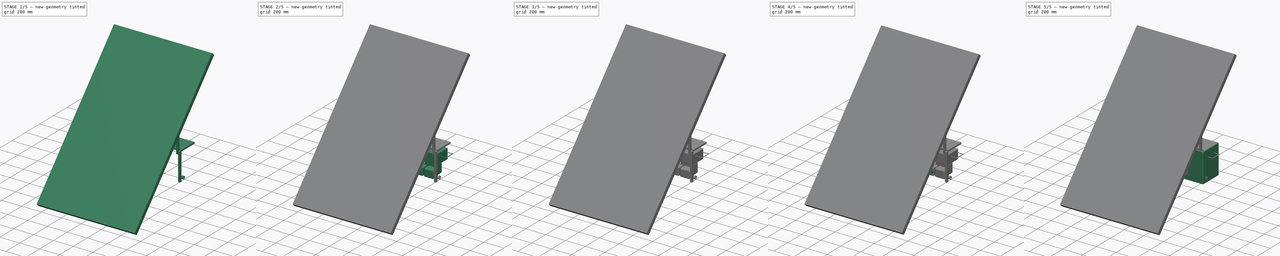
[diagram: build sequence overview — one tinted view per stage of 5, left to right]
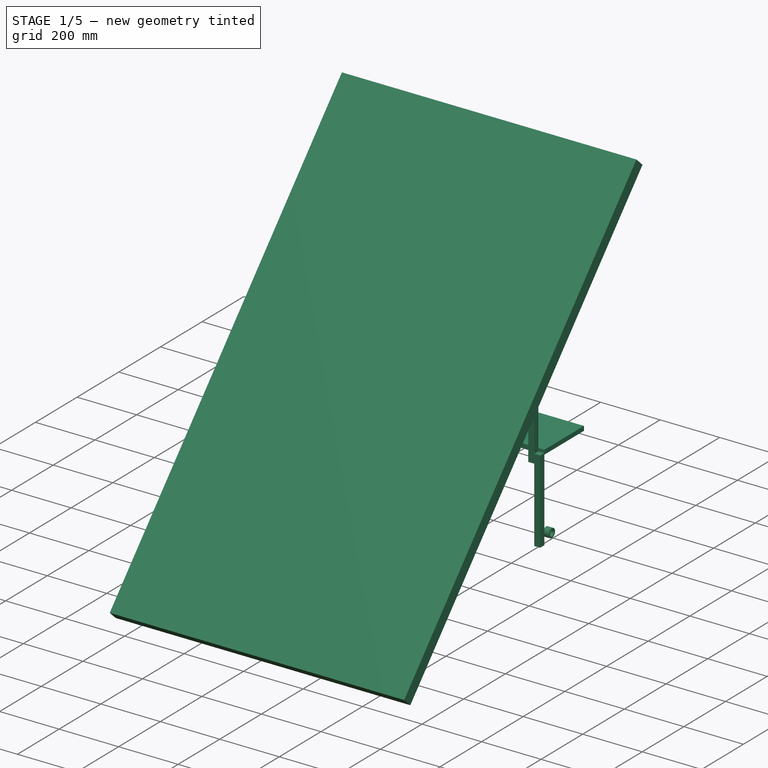
[diagram: stage 1 of 5 — iso view after this stage's code; geometry added in this stage tinted green]
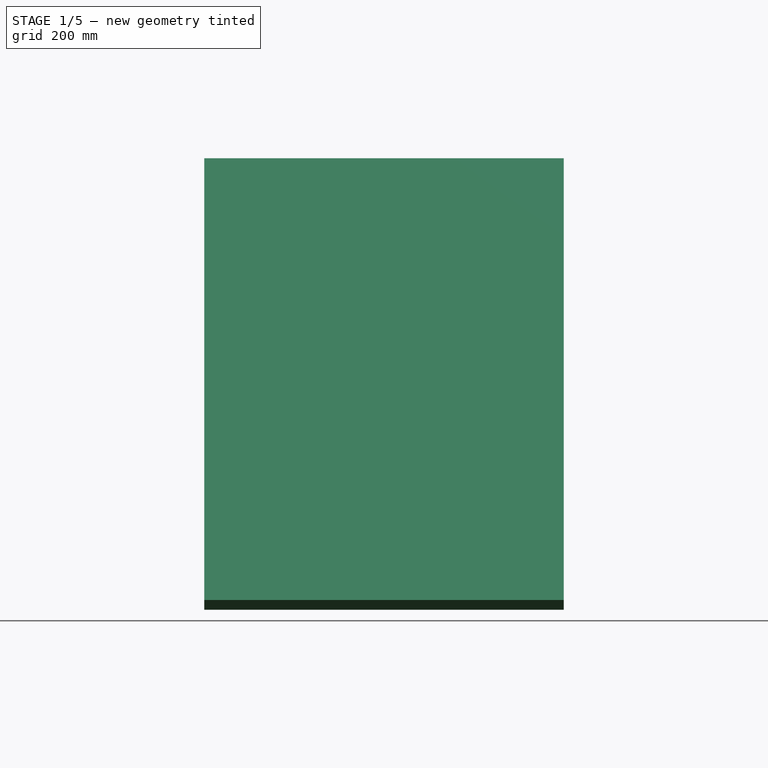
[diagram: stage 1 of 5 — front view after this stage's code; geometry added in this stage tinted green]
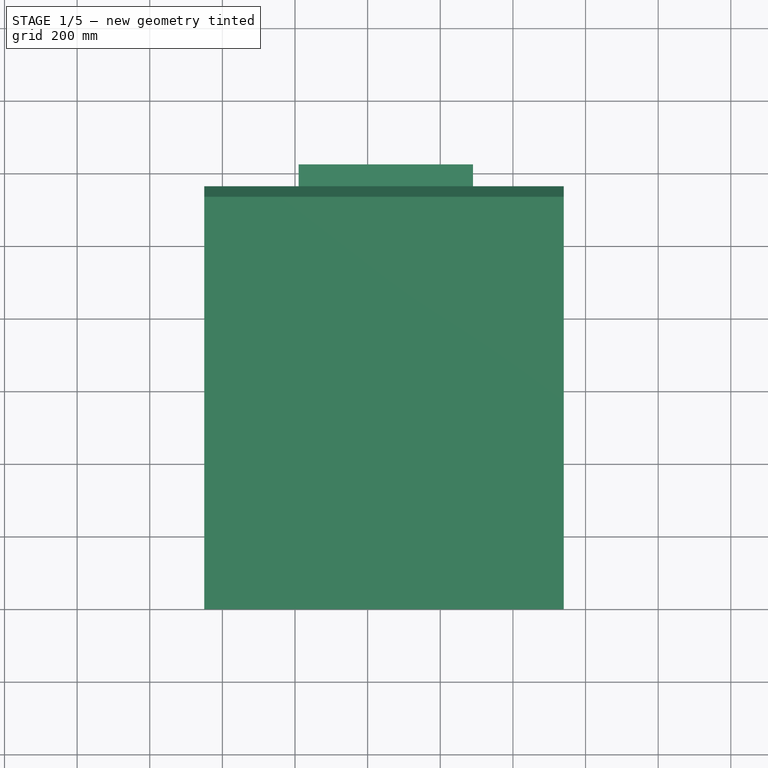
[diagram: stage 1 of 5 — top view after this stage's code; geometry added in this stage tinted green]
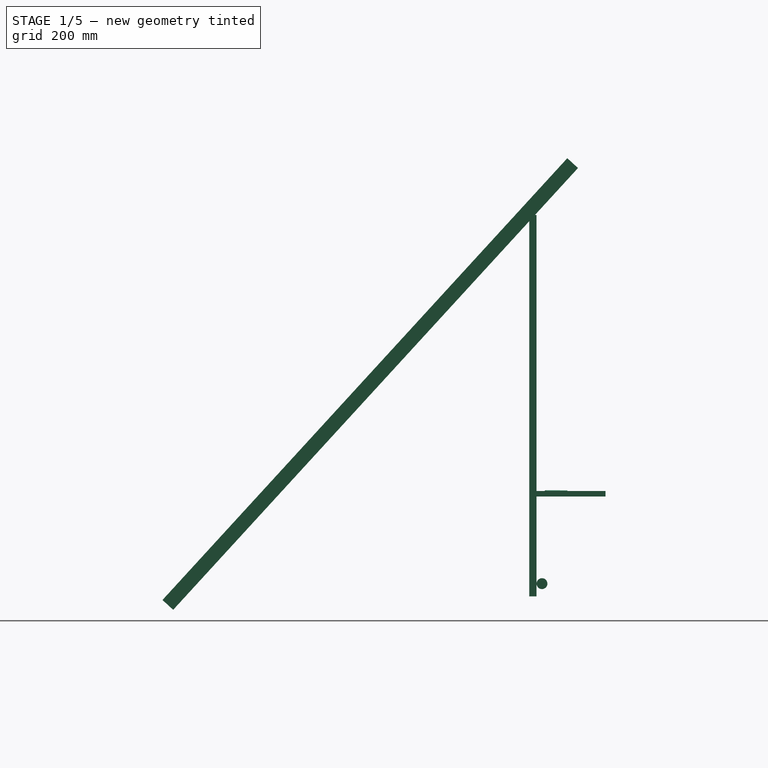
[diagram: stage 1 of 5 — right view after this stage's code; geometry added in this stage tinted green]
FCSTD DOCUMENT  (FreeCAD 0.16R6706 (Git))
Label: HOOU_FreeCAD_Solar_Box_v_03
License: All rights reserved
LicenseURL: http://en.wikipedia.org/wiki/All_rights_reserved
objects: Part::Box×35, Part::Cylinder×27, Part::Cut×14, Part::Fuse×12, Part::Fillet×8, Sketcher::SketchObject×4, PartDesign::Body×4, PartDesign::Pad×2, App::DocumentObjectGroup×1, Part::MultiFuse×1
note: 109 computed .brp shape members not serialized (recipe doc carries the construction recipe); baked Part::Feature solids carry a one-line shape summary decoded from their .brp

FEATURE [Part::Box] Box026  label="Solar Box Top part 1"
  Height = 15
  Length = 480
  Placement = pos=(10,30,285) rot=(0,0,1;0rad)
  Width = 190
FEATURE [Part::Cylinder] Cylinder025  label="Cylinder031"
  Angle = 360
  Height = 100
  Placement = pos=(-50,0,0) rot=(1,0,0;1.5708rad)
  Radius = 3
FEATURE [Part::Cylinder] Cylinder026  label="Cylinder032"
  Angle = 360
  Height = 60
  Placement = pos=(-50,-3,0) rot=(0,1,0;1.5708rad)
  Radius = 3
FEATURE [Part::Cylinder] Cylinder027  label="Cylinder033"
  Angle = 360
  Height = 60
  Placement = pos=(-50,-97,0) rot=(0,1,0;1.5708rad)
  Radius = 3
FEATURE [Part::Fuse] Fusion010
  Base = -> Cylinder025
  Tool = -> Cylinder026
FEATURE [Part::Fuse] Fusion011  label="Handle Top"
  Base = -> Cylinder027
  Placement = pos=(195,105,299) rot=(0,0,1;1.5708rad)
  Tool = -> Fusion010
FEATURE [Part::Box] Box027  label="Support left part 1"
  Height = 280
  Length = 20
  Placement = pos=(10,10,10) rot=(0,0,1;0rad)
  Width = 20
FEATURE [Part::Box] Box028  label="Support right part 1"
  Height = 280
  Length = 20
  Placement = pos=(470,10,10) rot=(0,0,1;0rad)
  Width = 20
FEATURE [Part::Box] Box029  label="Support left part 2"
  Height = 280
  Length = 20
  Placement = pos=(30,10,260) rot=(0,0,1;0rad)
  Width = 20
FEATURE [Part::Box] Box030  label="Support right part 2"
  Height = 280
  Length = 20
  Placement = pos=(450,10,260) rot=(0,0,1;0rad)
  Width = 20
FEATURE [Part::Box] Box031  label="Support left part 3"
  Height = 280
  Length = 20
  Placement = pos=(50,10,510) rot=(0,0,1;0rad)
  Width = 20
FEATURE [Part::Box] Box032  label="Support right part 3"
  Height = 280
  Length = 20
  Placement = pos=(430,10,510) rot=(0,0,1;0rad)
  Width = 20
FEATURE [Part::Box] Box033  label="Support left part 4"
  Height = 280
  Length = 20
  Placement = pos=(70,10,760) rot=(0,0,1;0rad)
  Width = 20
FEATURE [Part::Box] Box034  label="Support right part 4"
  Height = 280
  Length = 20
  Placement = pos=(410,10,760) rot=(0,0,1;0rad)
  Width = 20
FEATURE [Part::Box] Box035  label="Support top"
  Height = 480
  Length = 20
  Placement = pos=(10,10,1060) rot=(0,1,0;1.5708rad)
  Width = 20
FEATURE [Part::MultiFuse] Fusion013  label="Solar panel supporter"
  Shapes = -> [Box035,Box033,Box034,Box031,Box032,Box029,Box030,Box027,Box028]
FEATURE [Part::Box] Box036  label="Solar Panel"
  Height = 1650
  Length = 990
  Placement = pos=(-250,-1000,0) rot=(-1,0,0;0.741765rad)
  Width = 40
FEATURE [Part::Cylinder] Cylinder028  label="Micro Grid plug part 1"
  Angle = 360
  Height = 20
  Placement = pos=(485,45,45) rot=(0,1,0;1.5708rad)
  Radius = 15
FEATURE [Part::Cylinder] Cylinder029  label="Micro Grid plug part 2"
  Angle = 360
  Height = 16
  Placement = pos=(492,45,45) rot=(0,1,0;1.5708rad)
  Radius = 10
FEATURE [Part::Cut] Cut015  label="Micro Grid Plug"
  Base = -> Cylinder028
  Tool = -> Cylinder029
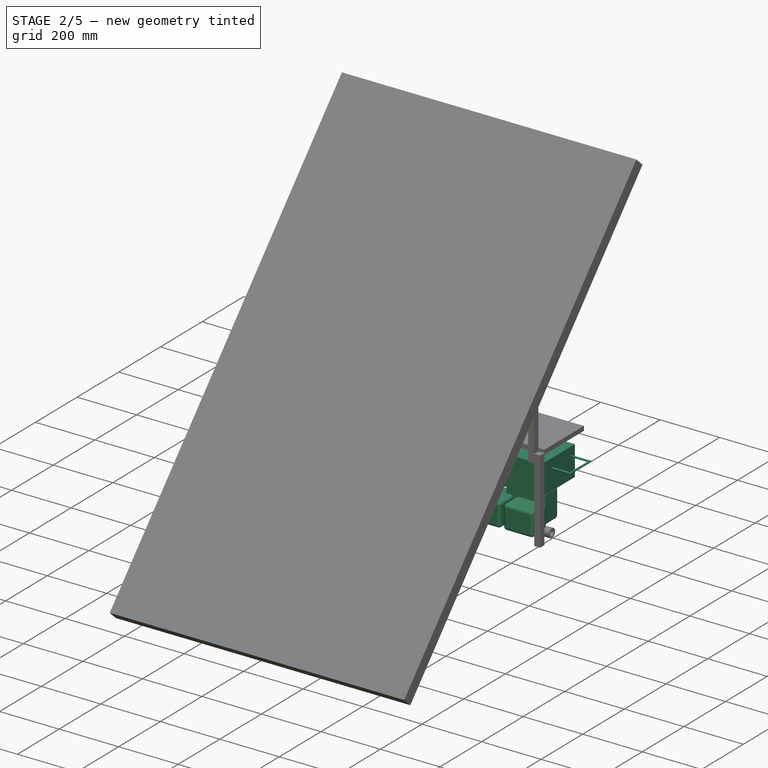
[diagram: stage 2 of 5 — iso view after this stage's code; geometry added in this stage tinted green]
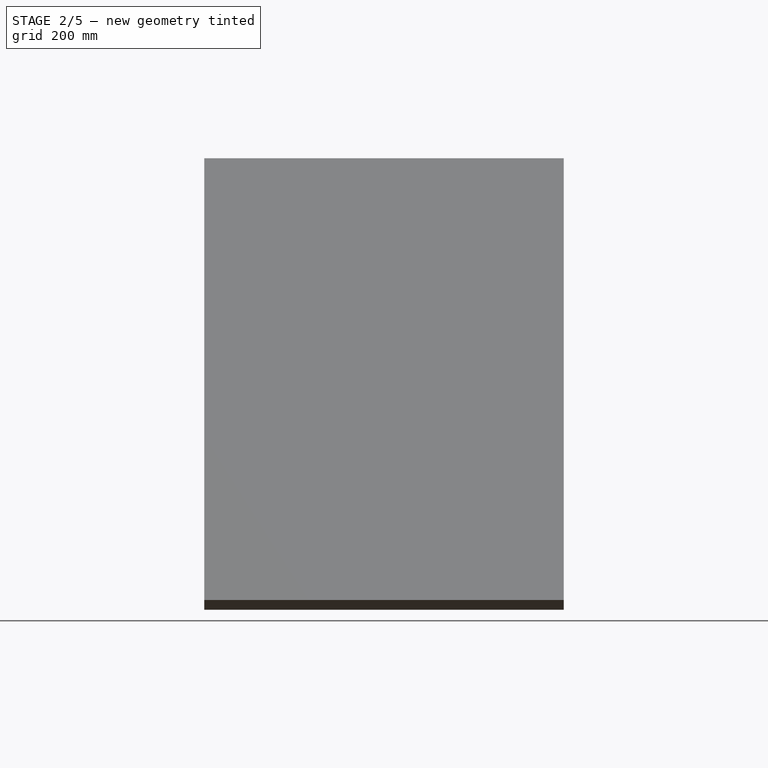
[diagram: stage 2 of 5 — front view after this stage's code; geometry added in this stage tinted green]
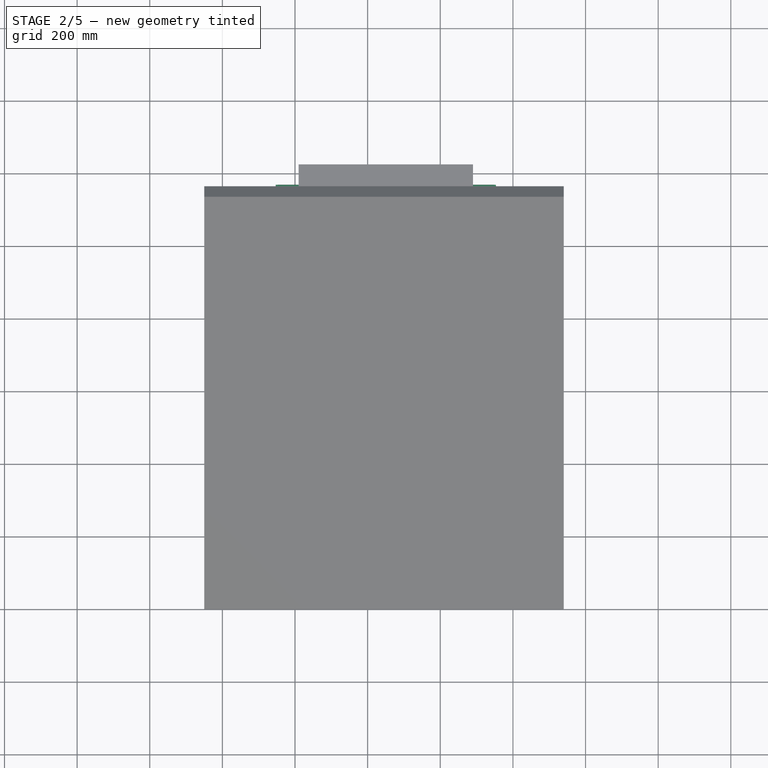
[diagram: stage 2 of 5 — top view after this stage's code; geometry added in this stage tinted green]
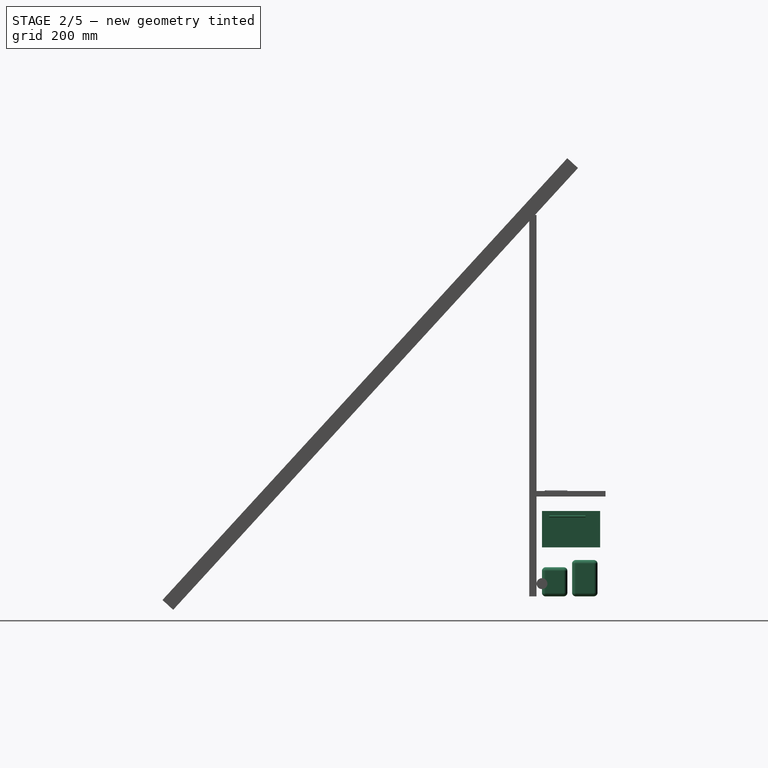
[diagram: stage 2 of 5 — right view after this stage's code; geometry added in this stage tinted green]
FEATURE [Part::Box] Box003  label="MPPT"
  Height = 100
  Length = 130
  Placement = pos=(290,128,10) rot=(0,0,1;0rad)
  Width = 70
FEATURE [Part::Box] Box007  label="Switch Box"
  Height = 80
  Length = 100
  Placement = pos=(340,45,10) rot=(0,0,1;0rad)
  Width = 70
FEATURE [Part::Box] Box008  label="Invertor"
  Height = 100
  Length = 260
  Placement = pos=(210,45,145) rot=(0,0,1;0rad)
  Width = 160
FEATURE [Part::Box] Box009  label="Fuse box"
  Height = 50
  Length = 50
  Placement = pos=(210,135,10) rot=(0,0,1;0rad)
  Width = 60
FEATURE [Part::Box] Box014  label="BMS"
  Height = 80
  Length = 120
  Placement = pos=(210,45,10) rot=(0,0,1;0rad)
  Width = 70
FEATURE [Part::Fillet] Fillet007  label="MPPT               "
  Base = -> Box003
  Edges = 12 edges r=10: [Edge1,Edge2,Edge3,Edge4,Edge5,Edge6,Edge7,Edge8,Edge9,Edge10,Edge11,Edge12]
FEATURE [Part::Fillet] Fillet008  label="switching Box"
  Base = -> Box007
  Edges = 12 edges r=10: [Edge1,Edge2,Edge3,Edge4,Edge5,Edge6,Edge7,Edge8,Edge9,Edge10,Edge11,Edge12]
FEATURE [Part::Fillet] Fillet009  label="Fuse Box"
  Base = -> Box009
  Edges = 12 edges r=10: [Edge1,Edge2,Edge3,Edge4,Edge5,Edge6,Edge7,Edge8,Edge9,Edge10,Edge11,Edge12]
FEATURE [Part::Fillet] Fillet010  label="BMS  "
  Base = -> Box014
  Edges = 12 edges r=10: [Edge1,Edge2,Edge3,Edge4,Edge5,Edge6,Edge7,Edge8,Edge9,Edge10,Edge11,Edge12]
FEATURE [Part::Cylinder] Cylinder019  label="Cylinder"
  Angle = 360
  Height = 100
  Placement = pos=(-50,0,0) rot=(1,0,0;1.5708rad)
  Radius = 3
FEATURE [Part::Cylinder] Cylinder020  label="Cylinder001"
  Angle = 360
  Height = 60
  Placement = pos=(-50,-3,0) rot=(0,1,0;1.5708rad)
  Radius = 3
FEATURE [Part::Cylinder] Cylinder021  label="Cylinder002"
  Angle = 360
  Height = 60
  Placement = pos=(-50,-97,0) rot=(0,1,0;1.5708rad)
  Radius = 3
FEATURE [Part::Fuse] Fusion006
  Base = -> Cylinder019
  Tool = -> Cylinder020
FEATURE [Part::Fuse] Fusion007  label="Handle Left"
  Base = -> Cylinder021
  Placement = pos=(0,165,230) rot=(0,0,1;0rad)
  Tool = -> Fusion006
FEATURE [Part::Cylinder] Cylinder022  label="Cylinder028"
  Angle = 360
  Height = 100
  Placement = pos=(-50,0,0) rot=(1,0,0;1.5708rad)
  Radius = 3
FEATURE [Part::Cylinder] Cylinder023  label="Cylinder029"
  Angle = 360
  Height = 60
  Placement = pos=(-50,-3,0) rot=(0,1,0;1.5708rad)
  Radius = 3
FEATURE [Part::Cylinder] Cylinder024  label="Cylinder030"
  Angle = 360
  Height = 60
  Placement = pos=(-50,-97,0) rot=(0,1,0;1.5708rad)
  Radius = 3
FEATURE [Part::Fuse] Fusion008
  Base = -> Cylinder022
  Tool = -> Cylinder023
FEATURE [Part::Fuse] Fusion009  label="Handle Right"
  Base = -> Cylinder024
  Placement = pos=(500,165,230) rot=(0,1,0;3.14159rad)
  Tool = -> Fusion008
FEATURE [Part::Fuse] Fusion012  label="Solar Box Top cover"
  Base = -> Box026
  Tool = -> Fusion011
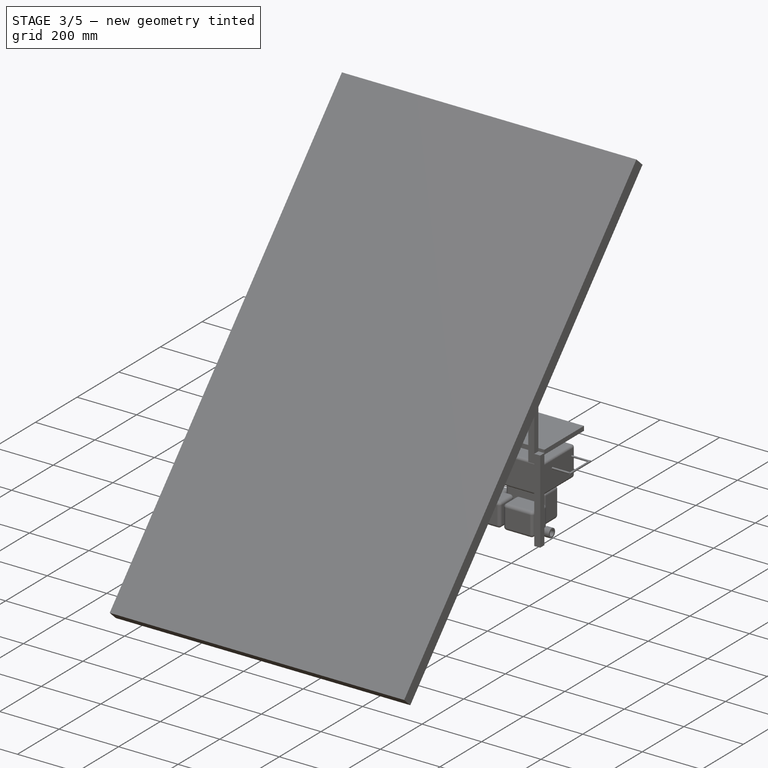
[diagram: stage 3 of 5 — iso view after this stage's code; geometry added in this stage tinted green]
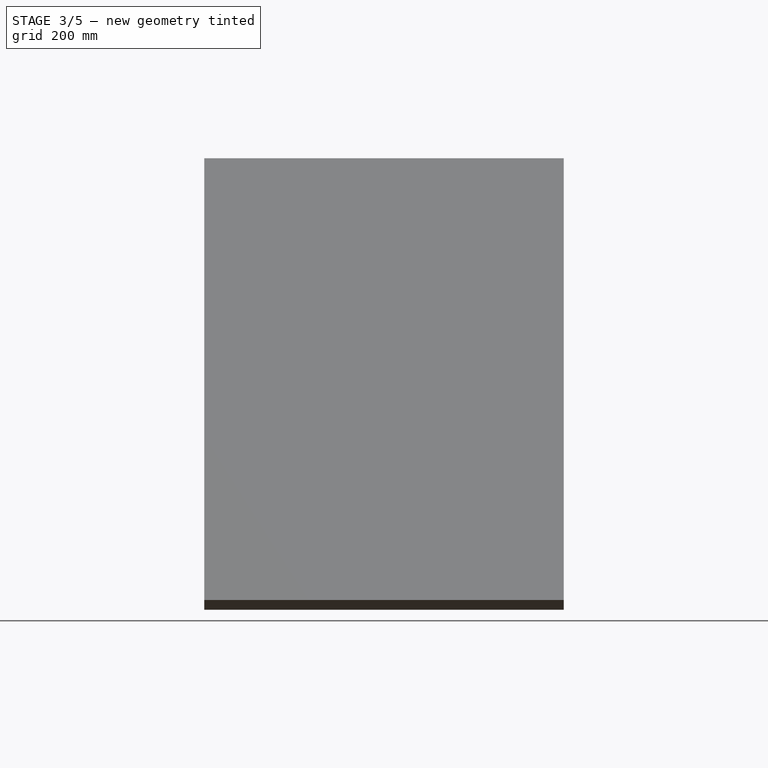
[diagram: stage 3 of 5 — front view after this stage's code; geometry added in this stage tinted green]
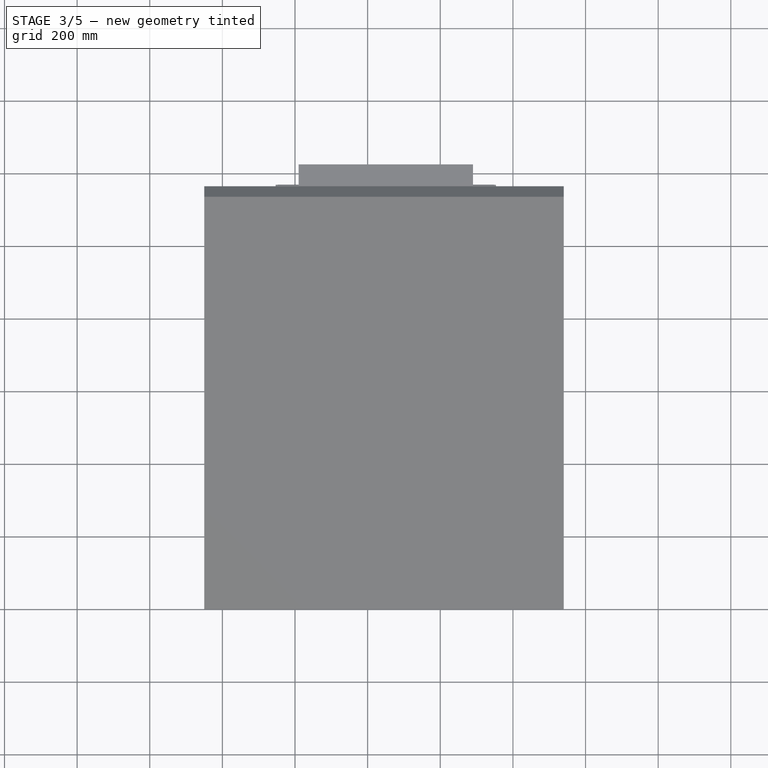
[diagram: stage 3 of 5 — top view after this stage's code; geometry added in this stage tinted green]
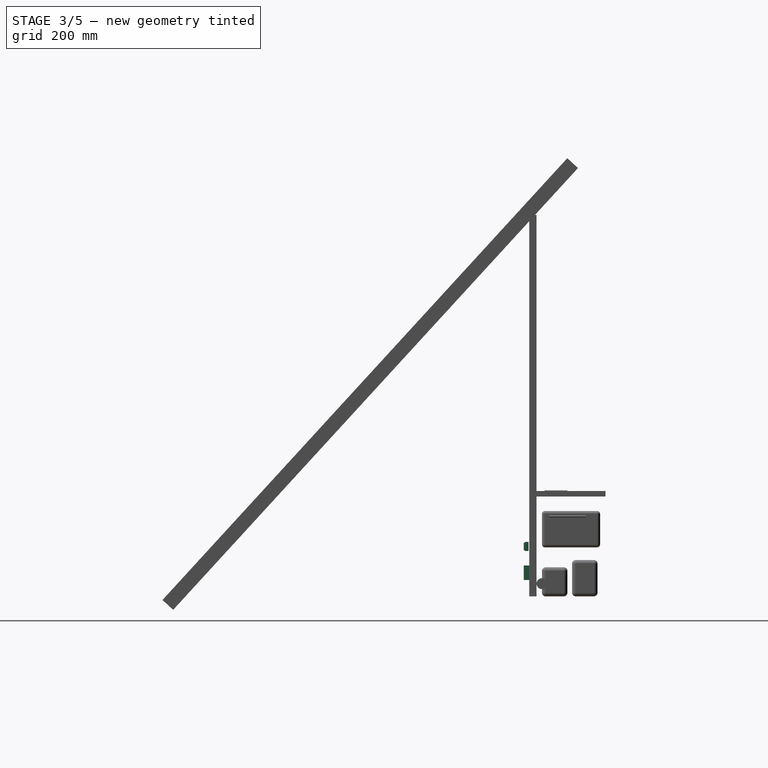
[diagram: stage 3 of 5 — right view after this stage's code; geometry added in this stage tinted green]
FEATURE [Part::Box] Box017  label="DC Plug part 004"
  Height = 25
  Length = 40
  Placement = pos=(150,0,125) rot=(1,0,0;1.5708rad)
  Width = 40
FEATURE [Part::Cylinder] Cylinder017  label="DC Plug part 005"
  Angle = 360
  Height = 20
  Placement = pos=(178,-7,145) rot=(1,0,0;1.5708rad)
  Radius = 3
FEATURE [Part::Cylinder] Cylinder018  label="DC Plug part 006"
  Angle = 360
  Height = 20
  Placement = pos=(162,-7,145) rot=(1,0,0;1.5708rad)
  Radius = 3
FEATURE [Part::Cut] Cut010
  Base = -> Box017
  Tool = -> Cylinder017
FEATURE [Part::Cut] Cut011  label="DC Plug 2"
  Base = -> Cut010
  Placement = pos=(0,20,-70) rot=(0,0,1;0rad)
  Tool = -> Cylinder018
FEATURE [Part::Box] Box018  label="USB Plug"
  Height = 25
  Length = 20
  Placement = pos=(240,20,100) rot=(1,0,0;1.5708rad)
  Width = 30
FEATURE [Part::Box] Box019  label="USB Plug001"
  Height = 20
  Length = 14
  Placement = pos=(243,13,103) rot=(1,0,0;1.5708rad)
  Width = 6
FEATURE [Part::Box] Box020  label="USB Plug002"
  Height = 20
  Length = 14
  Placement = pos=(243,13,112) rot=(1,0,0;1.5708rad)
  Width = 6
FEATURE [Part::Box] Box021  label="USB Plug003"
  Height = 20
  Length = 14
  Placement = pos=(243,13,121) rot=(1,0,0;1.5708rad)
  Width = 6
FEATURE [Part::Cut] Cut012
  Base = -> Box018
  Tool = -> Box019
FEATURE [Part::Cut] Cut013
  Base = -> Cut012
  Tool = -> Box021
FEATURE [Part::Cut] Cut014  label="USB Plug  "
  Base = -> Cut013
  Placement = pos=(0,0,-40) rot=(0,0,1;0rad)
  Tool = -> Box020
FEATURE [Part::Box] Box022  label="Fan Switch part 003"
  Height = 25
  Length = 15
  Placement = pos=(225,230,225) rot=(0,0,1;0rad)
  Width = 10
FEATURE [Part::Box] Box023  label="Fan Switch part 004"
  Height = 21
  Length = 11
  Placement = pos=(227,236,227) rot=(0,0,1;0rad)
  Width = 7
FEATURE [Part::Fuse] Fusion004  label="DC Plug Switch"
  Base = -> Box022
  Placement = pos=(450,238,-90) rot=(0,0,1;3.14159rad)
  Tool = -> Box023
FEATURE [Part::Box] Box024  label="Fan Switch part 005"
  Height = 25
  Length = 15
  Placement = pos=(225,230,225) rot=(0,0,1;0rad)
  Width = 10
FEATURE [Part::Box] Box025  label="Fan Switch part 006"
  Height = 21
  Length = 11
  Placement = pos=(227,236,227) rot=(0,0,1;0rad)
  Width = 7
FEATURE [Part::Fuse] Fusion005  label="AC Plug Switch"
  Base = -> Box024
  Placement = pos=(510,238,-90) rot=(0,0,1;3.14159rad)
  Tool = -> Box025
FEATURE [Part::Fillet] Fillet006  label="Invertor  "
  Base = -> Box008
  Edges = 12 edges r=8: [Edge1,Edge2,Edge3,Edge4,Edge5,Edge6,Edge7,Edge8,Edge9,Edge10,Edge11,Edge12]
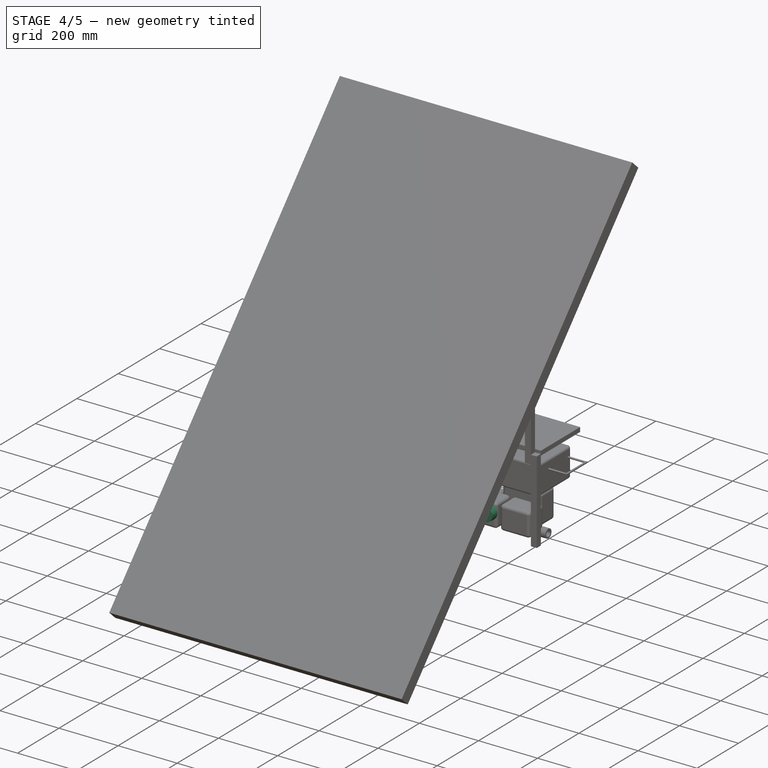
[diagram: stage 4 of 5 — iso view after this stage's code; geometry added in this stage tinted green]
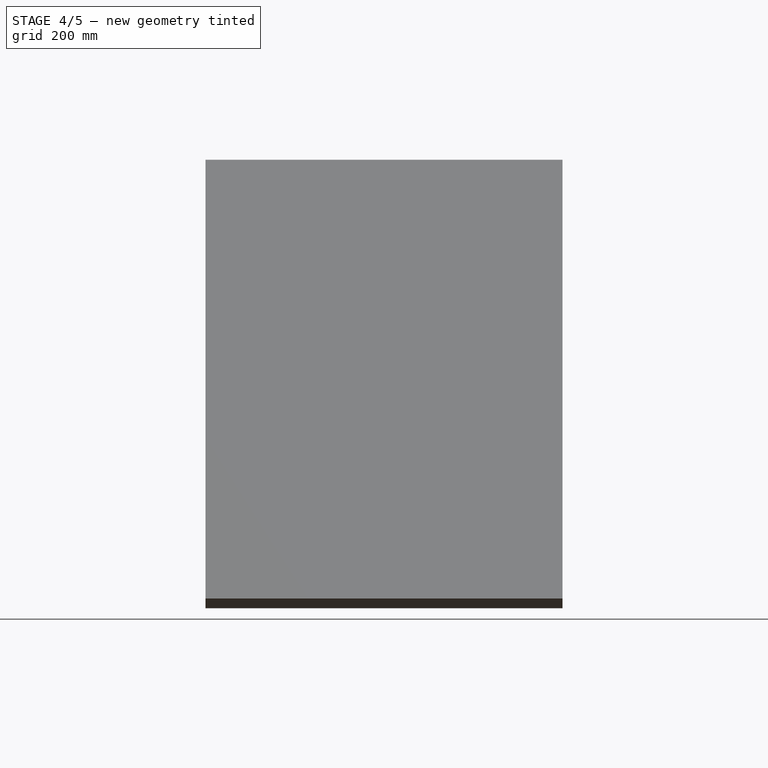
[diagram: stage 4 of 5 — front view after this stage's code; geometry added in this stage tinted green]
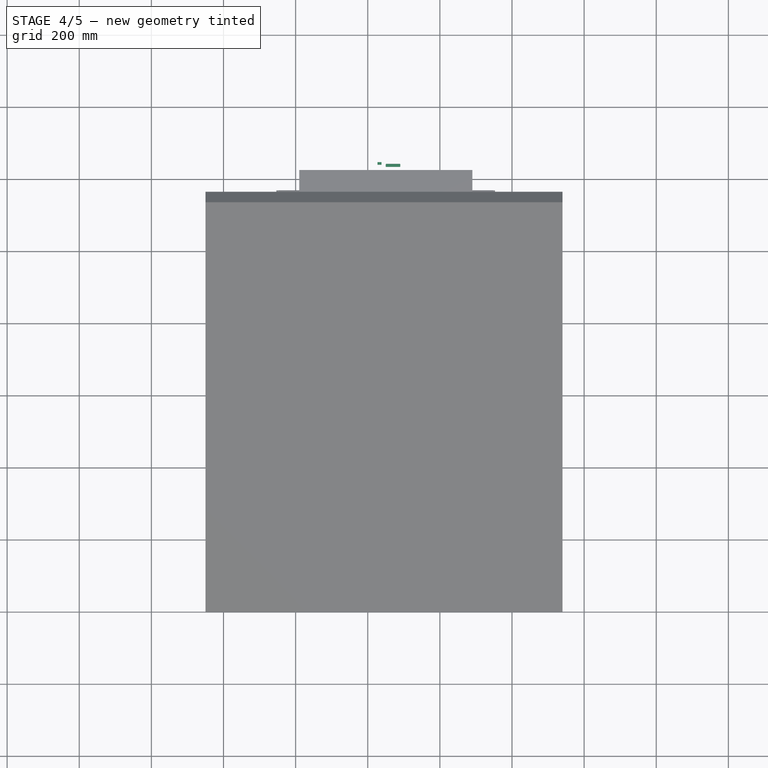
[diagram: stage 4 of 5 — top view after this stage's code; geometry added in this stage tinted green]
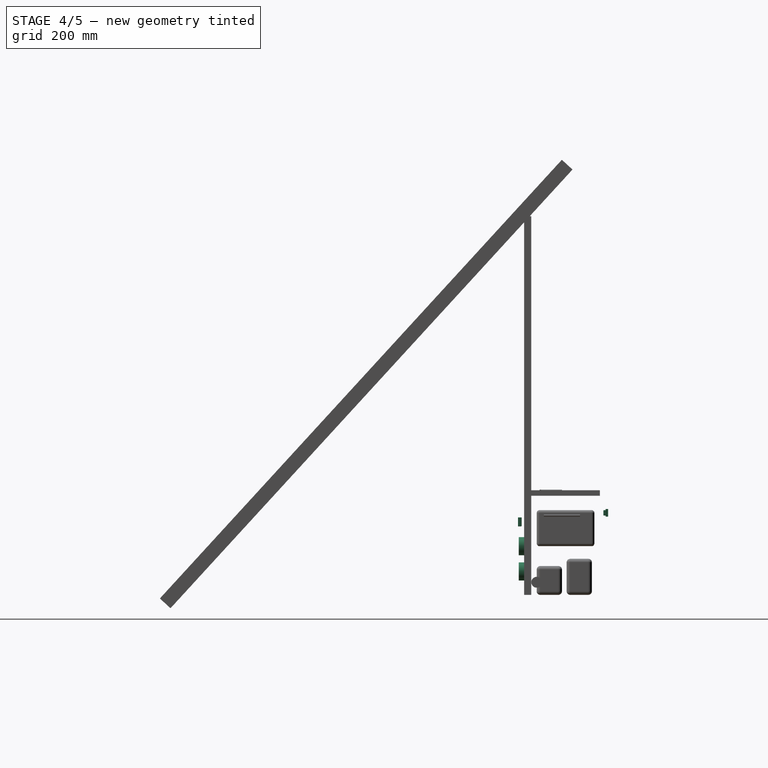
[diagram: stage 4 of 5 — right view after this stage's code; geometry added in this stage tinted green]
FEATURE [Part::Box] Box011  label="Temp. Disply"
  Height = 15
  Length = 40
  Placement = pos=(250,230,230) rot=(0,0,1;0rad)
  Width = 8
FEATURE [Part::Box] Box013  label="Fan Switch part 2"
  Height = 21
  Length = 11
  Placement = pos=(227,236,227) rot=(0,0,1;0rad)
  Width = 7
FEATURE [Part::Fillet] Fillet  label="Temp. Disply "
  Base = -> Box011
  Edges = 12 edges r=1: [Edge1,Edge2,Edge3,Edge4,Edge5,Edge6,Edge7,Edge8,Edge9,Edge10,Edge11,Edge12]
FEATURE [Part::Box] Box015  label="Main Disply001"
  Height = 25
  Length = 45
  Placement = pos=(225,-7,200) rot=(0,0,1;0rad)
  Width = 10
FEATURE [Part::Fillet] Fillet005  label="Main Disply"
  Base = -> Box015
  Edges = 12 edges r=1: [Edge1,Edge2,Edge3,Edge4,Edge5,Edge6,Edge7,Edge8,Edge9,Edge10,Edge11,Edge12]
FEATURE [Part::Cylinder] Cylinder009  label="AC Plug part 1"
  Angle = 360
  Height = 25
  Placement = pos=(250,20,130) rot=(1,0,0;1.5708rad)
  Radius = 25
FEATURE [Part::Cylinder] Cylinder010  label="AC Plug part 2"
  Angle = 360
  Height = 15
  Placement = pos=(242,9,130) rot=(1,0,0;1.5708rad)
  Radius = 3
FEATURE [Part::Cylinder] Cylinder011  label="AC Plug part 3"
  Angle = 360
  Height = 15
  Placement = pos=(258,9,130) rot=(1,0,0;1.5708rad)
  Radius = 3
FEATURE [Part::Cut] Cut004
  Base = -> Cylinder009
  Tool = -> Cylinder010
FEATURE [Part::Cut] Cut005  label="AC Plug 1"
  Base = -> Cut004
  Placement = pos=(75,0,15) rot=(0,0,1;0rad)
  Tool = -> Cylinder011
FEATURE [Part::Cylinder] Cylinder012  label="AC Plug part 004"
  Angle = 360
  Height = 25
  Placement = pos=(250,20,130) rot=(1,0,0;1.5708rad)
  Radius = 25
FEATURE [Part::Cylinder] Cylinder013  label="AC Plug part 005"
  Angle = 360
  Height = 15
  Placement = pos=(242,9,130) rot=(1,0,0;1.5708rad)
  Radius = 3
FEATURE [Part::Cylinder] Cylinder014  label="AC Plug part 006"
  Angle = 360
  Height = 15
  Placement = pos=(258,9,130) rot=(1,0,0;1.5708rad)
  Radius = 3
FEATURE [Part::Cut] Cut006
  Base = -> Cylinder012
  Tool = -> Cylinder013
FEATURE [Part::Cut] Cut007  label="AC Plug 2"
  Base = -> Cut006
  Placement = pos=(75,0,-55) rot=(0,0,1;0rad)
  Tool = -> Cylinder014
FEATURE [Part::Box] Box016  label="DC Plug part 1"
  Height = 25
  Length = 40
  Placement = pos=(150,0,125) rot=(1,0,0;1.5708rad)
  Width = 40
FEATURE [Part::Cylinder] Cylinder015  label="DC Plug part 2"
  Angle = 360
  Height = 20
  Placement = pos=(178,-7,145) rot=(1,0,0;1.5708rad)
  Radius = 3
FEATURE [Part::Cylinder] Cylinder016  label="DC Plug part 3"
  Angle = 360
  Height = 20
  Placement = pos=(162,-7,145) rot=(1,0,0;1.5708rad)
  Radius = 3
FEATURE [Part::Cut] Cut008
  Base = -> Box016
  Tool = -> Cylinder015
FEATURE [Part::Cut] Cut009  label="DC Plug 1"
  Base = -> Cut008
  Placement = pos=(0,20,0) rot=(0,0,1;0rad)
  Tool = -> Cylinder016
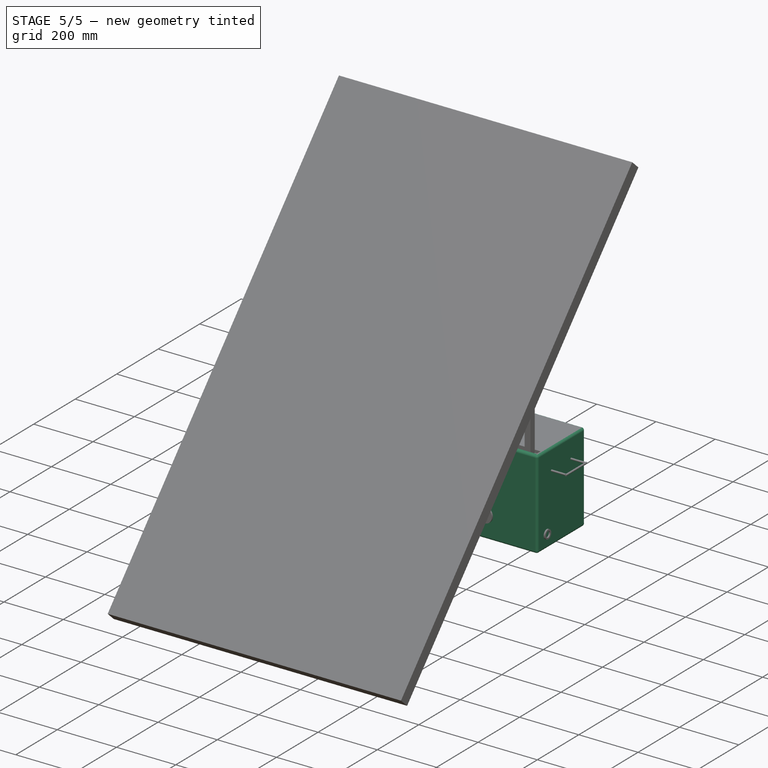
[diagram: stage 5 of 5 — iso view after this stage's code; geometry added in this stage tinted green]
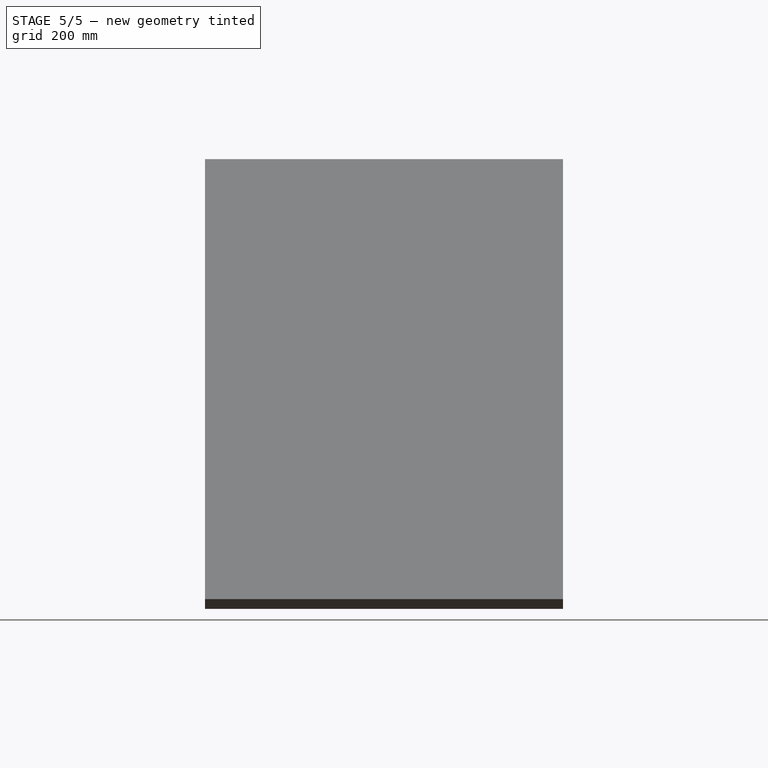
[diagram: stage 5 of 5 — front view after this stage's code; geometry added in this stage tinted green]
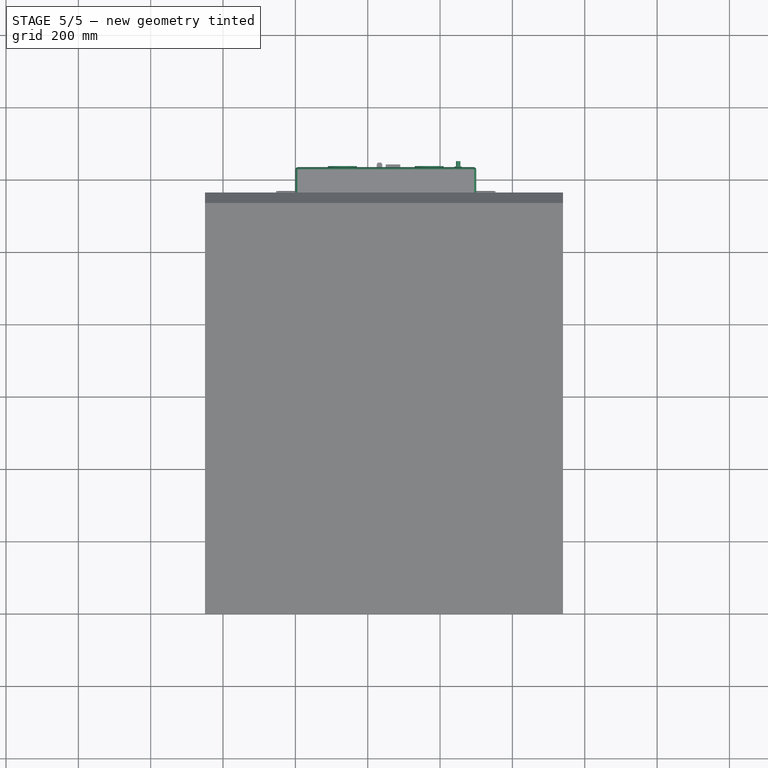
[diagram: stage 5 of 5 — top view after this stage's code; geometry added in this stage tinted green]
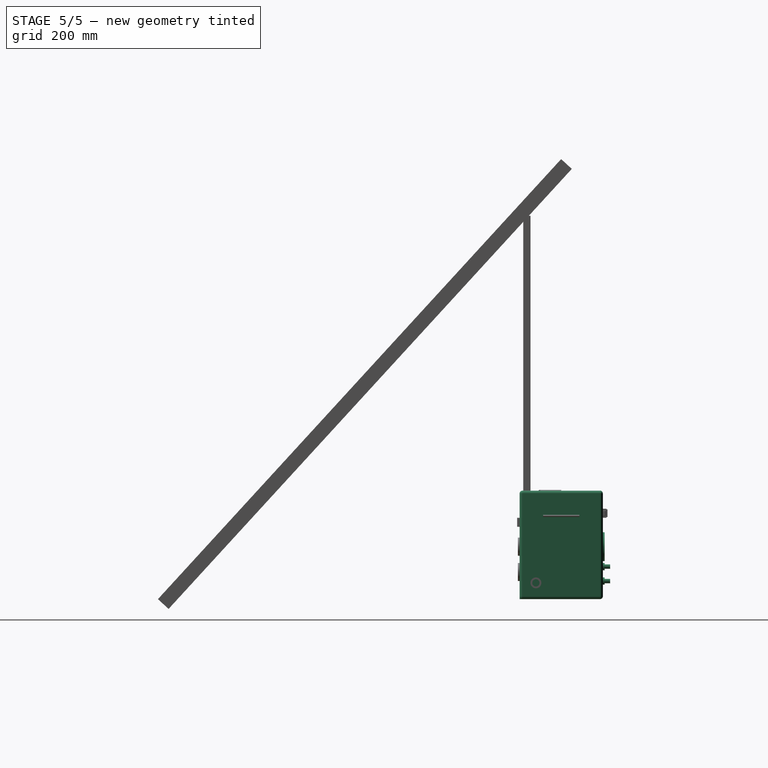
[diagram: stage 5 of 5 — right view after this stage's code; geometry added in this stage tinted green]
FEATURE [Part::Box] Box  label="Cube"
  Height = 300
  Length = 500
  Width = 230
FEATURE [Part::Box] Box001  label="Cube001"
  Height = 320
  Length = 480
  Placement = pos=(10,10,10) rot=(0,0,1;0rad)
  Width = 210
FEATURE [Part::Cut] Cut  label="Solar Box"
  Base = -> Box
  Tool = -> Box001
FEATURE [Sketcher::SketchObject] Sketch
FEATURE [Part::Box] Box002  label="Akku_box"
  Height = 290
  Length = 170
  Placement = pos=(20,50,20) rot=(0,0,1;0rad)
  Width = 160
FEATURE [Part::Cylinder] Cylinder001  label="Fan 1"
  Angle = 360
  Height = 20
  Placement = pos=(370,235,145) rot=(1,0,0;1.5708rad)
  Radius = 40
FEATURE [PartDesign::Body] Body  label="AKKU 001"
  Placement = pos=(165,55,25) rot=(0,0,1;1.5708rad)
FEATURE [Sketcher::SketchObject] Sketch001
  sketch-geometry (4):
    g0: LineSegment StartX=0 StartY=135.1 StartZ=0 EndX=31 EndY=135.1 EndZ=0
    g1: LineSegment StartX=31 StartY=135.1 StartZ=0 EndX=31 EndY=0 EndZ=0
    g2: LineSegment StartX=31 StartY=0 StartZ=0 EndX=0 EndY=0 EndZ=0
    g3: LineSegment StartX=0 StartY=0 StartZ=0 EndX=0 EndY=135.1 EndZ=0
  constraints (11):
    c: Coincident(g0,g1)
    c: Coincident(g1,g2)
    c: Coincident(g2,g3)
    c: Coincident(g3,g0)
    c: Horizontal(g0)
    c: Horizontal(g2)
    c: Vertical(g1)
    c: Vertical(g3)
    c: Coincident(g2,g-1)
    c: DistanceY(g3,g3) = 135.1
    c: DistanceX(g2,g2) = 31
FEATURE [PartDesign::Pad] Pad
  Length = 217.3
  Length2 = 100
  Type = 0
FEATURE [Sketcher::SketchObject] Sketch002
  Placement = pos=(0,0,217.3) rot=(0,0,1;0rad)
  sketch-geometry (3):
    g0: Circle CenterX=15.5 CenterY=33.8 CenterZ=0 NormalX=0 NormalY=0 NormalZ=1 Radius=8
    g1: Circle CenterX=15.5 CenterY=67.55 CenterZ=0 NormalX=0 NormalY=0 NormalZ=1 Radius=10
    g2: Circle CenterX=15.5 CenterY=101.3 CenterZ=0 NormalX=0 NormalY=0 NormalZ=1 Radius=8
  constraints (9):
    c: DistanceY(g-1,g1) = 67.55
    c: DistanceX(g-1,g1) = 15.5
    c: DistanceX(g-1,g0) = 15.5
    c: DistanceX(g-1,g2) = 15.5
    c: DistanceY(g-1,g0) = 33.8
    c: DistanceY(g-1,g2) = 101.3
    c: Radius(g2) = 8
    c: Radius(g0) = 8
    c: Radius(g1) = 10
FEATURE [PartDesign::Pad] Pad001
  Length = 5.2
  Length2 = 100
  Type = 0
FEATURE [Sketcher::SketchObject] Sketch003
  Placement = pos=(0,0,222.5) rot=(0,0,1;0rad)
  sketch-geometry (2):
    g0: Circle CenterX=15.5 CenterY=101.3 CenterZ=0 NormalX=0 NormalY=0 NormalZ=1 Radius=4
    g1: Circle CenterX=15.5 CenterY=33.8 CenterZ=0 NormalX=0 NormalY=0 NormalZ=1 Radius=4
  constraints (6):
    c: Radius(g0) = 4
    c: DistanceY(g-1,g0) = 101.3
    c: DistanceX(g-1,g0) = 15.5
    c: Radius(g1) = 4
    c: DistanceX(g-1,g1) = 15.5
    c: DistanceY(g-1,g1) = 33.8
FEATURE [PartDesign::Body] Body001  label="AKKU 002"
  Placement = pos=(165,90,25) rot=(0,0,1;1.5708rad)
FEATURE [PartDesign::Body] Body002  label="AKKU 003"
  Placement = pos=(165,125,25) rot=(0,0,1;1.5708rad)
FEATURE [PartDesign::Body] Body003  label="AKKU 004"
  Placement = pos=(165,160,25) rot=(0,0,1;1.5708rad)
FEATURE [App::DocumentObjectGroup] Group  label="Akku"
  Group = -> [Body,XY_Plane,XZ_Plane,YZ_Plane,Sketch001,Pad,Sketch002,Pad001,Sketch003,Body001,Body002,Body003]
FEATURE [Part::Box] Box006  label="Akku_box001"
  Height = 270
  Length = 180
  Placement = pos=(15,45,10) rot=(0,0,1;0rad)
  Width = 170
FEATURE [Part::Cut] Cut003  label="Akku_pack"
  Base = -> Box006
  Tool = -> Box002
FEATURE [Part::Cylinder] Cylinder004  label="Fan 2"
  Angle = 360
  Height = 30
  Placement = pos=(130,235,145) rot=(1,0,0;1.5708rad)
  Radius = 40
FEATURE [Part::Box] Box010  label="Box partation"
  Height = 5
  Length = 289
  Placement = pos=(198,30,140) rot=(0,0,1;0rad)
  Width = 185
FEATURE [Part::Cylinder] Cylinder  label="PV plug part 1"
  Angle = 360
  Height = 18
  Placement = pos=(450,235,50) rot=(1,0,0;1.5708rad)
  Radius = 10
FEATURE [Part::Cylinder] Cylinder006  label="PV plug part 2"
  Angle = 360
  Height = 15
  Placement = pos=(450,250,50) rot=(1,0,0;1.5708rad)
  Radius = 6
FEATURE [Part::Fuse] Fusion  label="PV Input Plug001"
  Base = -> Cylinder
  Tool = -> Cylinder006
FEATURE [Part::Cylinder] Cylinder007  label="PV plug part 003"
  Angle = 360
  Height = 18
  Placement = pos=(450,235,50) rot=(1,0,0;1.5708rad)
  Radius = 10
FEATURE [Part::Cylinder] Cylinder008  label="PV plug part 004"
  Angle = 360
  Height = 15
  Placement = pos=(450,250,50) rot=(1,0,0;1.5708rad)
  Radius = 6
FEATURE [Part::Fuse] Fusion002  label="PV Input Plug002"
  Base = -> Cylinder007
  Placement = pos=(0,0,40) rot=(0,0,1;0rad)
  Tool = -> Cylinder008
FEATURE [Part::Fillet] Fillet004  label="Solar Box      "
  Base = -> Cut
  Edges = 12 edges r=8: [Edge1,Edge2,Edge3,Edge4,Edge5,Edge6,Edge7,Edge8,Edge9,Edge14,Edge15,Edge16]
FEATURE [Part::Box] Box012  label="Fan Switch part 1"
  Height = 25
  Length = 15
  Placement = pos=(225,230,225) rot=(0,0,1;0rad)
  Width = 10
FEATURE [Part::Fuse] Fusion003  label="Fan Switch"
  Base = -> Box012
  Tool = -> Box013
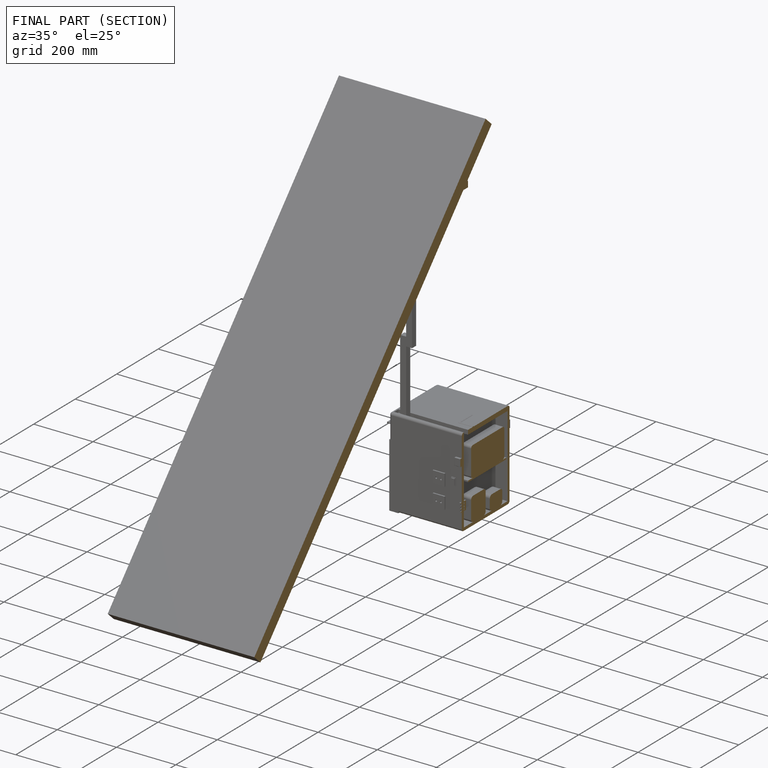
[diagram: finished part — half-section view (interior)]
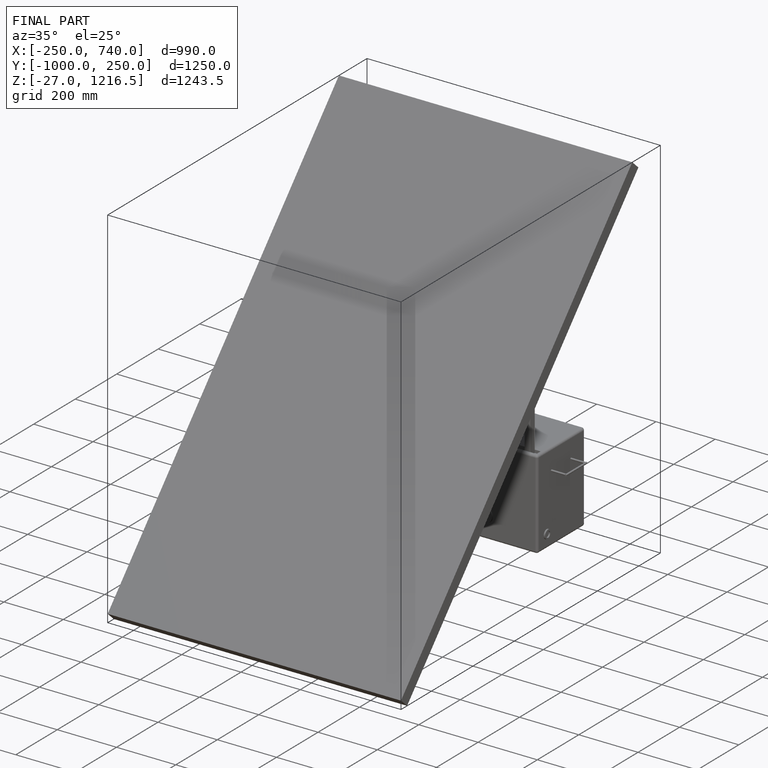
[diagram: finished part — iso view with bounding-box wireframe]
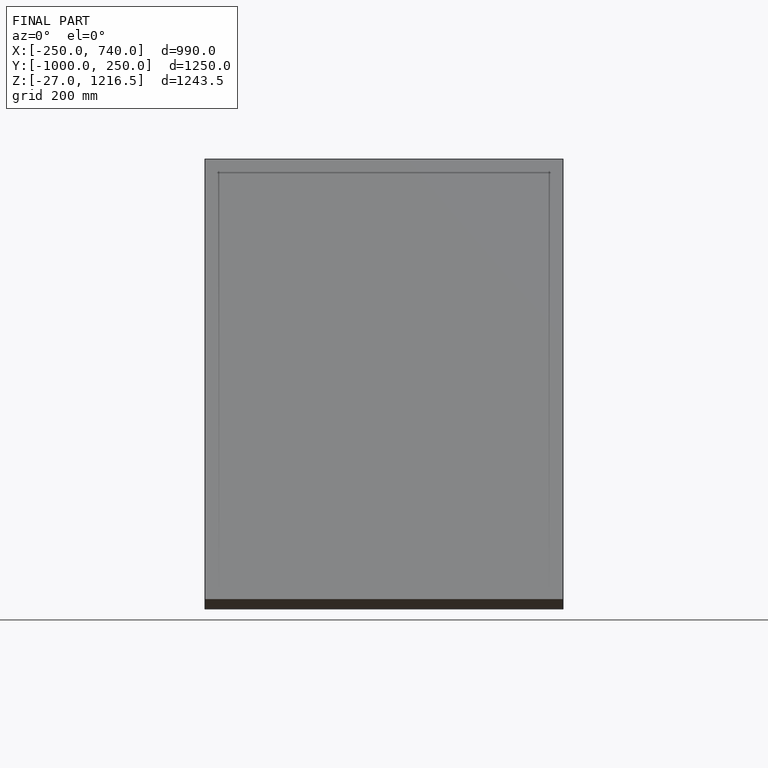
[diagram: finished part — front view with bounding-box wireframe]
